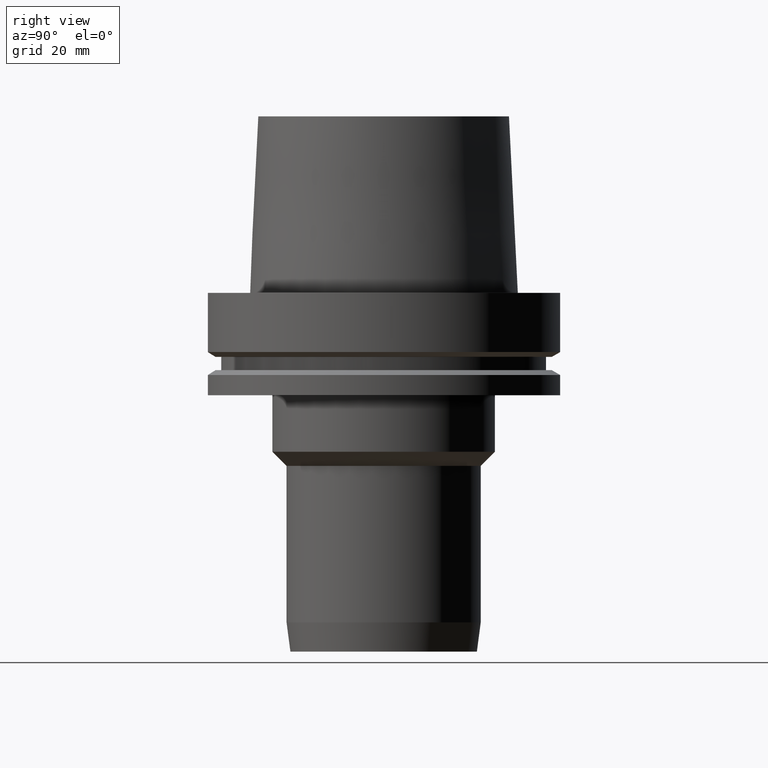
[diagram: clean part render]
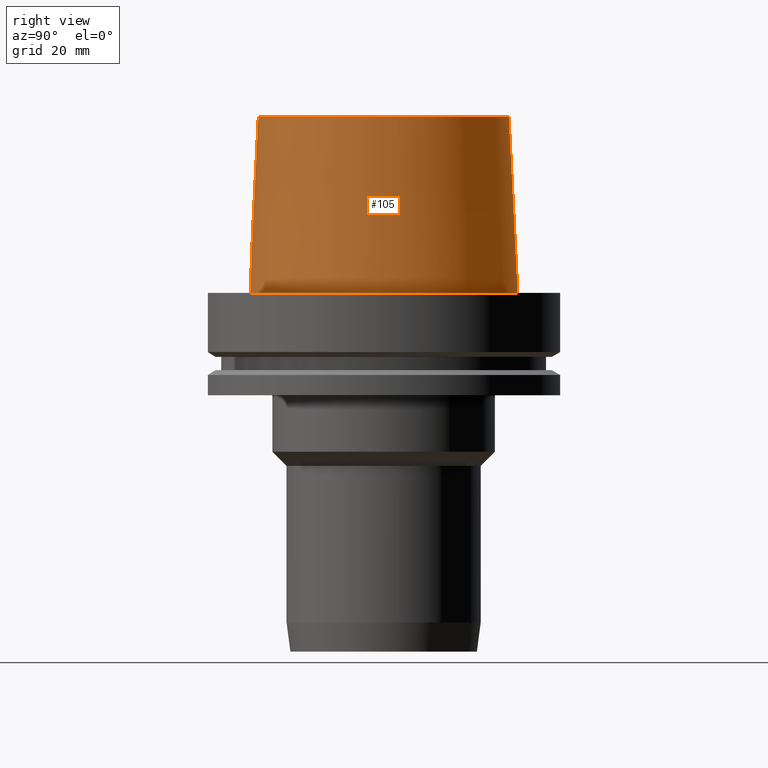
[diagram: same view with one face highlighted and labeled with its STEP entity id]
A machine part, right view. The second image highlights one B-rep face of the part: STEP entity #105.
In plain terms, the highlighted conical surface has half-angle 2.862 deg.
Its self-contained STEP definition (entity closure, byte-faithful):
#90=EDGE_CURVE('Unnamed[1]',#206,#206,#207,.T.);
#105=ADVANCED_FACE('Unnamed[1]',(#229,#230),#231,.T.);
#110=EDGE_CURVE('Unnamed[1]',#238,#238,#239,.T.);
#206=VERTEX_POINT('',#352);
#207=CIRCLE('',#353,37.9999999999349);
#229=FACE_BOUND('',#381,.T.);
#230=FACE_BOUND('',#382,.T.);
#231=CONICAL_SURFACE('',#383,36.7500000007484,0.0499583956894843);
#238=VERTEX_POINT('',#392);
#239=CIRCLE('',#393,35.5000000015618);
#352=CARTESIAN_POINT('',(-3.3636548776863E-032,37.9999999999349,-2.44634216324803E-015));
#353=AXIS2_PLACEMENT_3D('',#503,#504,#505);
#381=EDGE_LOOP('',(#528));
#382=EDGE_LOOP('',(#529));
#383=AXIS2_PLACEMENT_3D('',#530,#531,#532);
#392=CARTESIAN_POINT('',(-3.06161699786838E-015,35.5000000015618,50.0));
#393=AXIS2_PLACEMENT_3D('',#539,#540,#541);
#503=CARTESIAN_POINT('',(0.0,0.0,0.0));
#504=DIRECTION('',(6.12323399573677E-017,1.22464679914704E-016,-1.0));
#505=DIRECTION('',(-1.23259516440805E-032,1.0,1.22464679914704E-016));
#528=ORIENTED_EDGE('',*,*,#90,.F.);
#529=ORIENTED_EDGE('',*,*,#110,.T.);
#530=CARTESIAN_POINT('',(-1.53080849893419E-015,-3.06161699786838E-015,25.0));
#531=DIRECTION('',(6.12323399573676E-017,1.22464679914694E-016,-1.0));
#532=DIRECTION('',(-1.23259516440762E-032,1.0,1.22464679914694E-016));
#539=CARTESIAN_POINT('',(-3.06161699786838E-015,-6.12323399573676E-015,50.0));
#540=DIRECTION('',(6.12323399573677E-017,1.22464679914774E-016,-1.0));
#541=DIRECTION('',(-1.23259516440767E-032,1.0,1.22464679914774E-016));